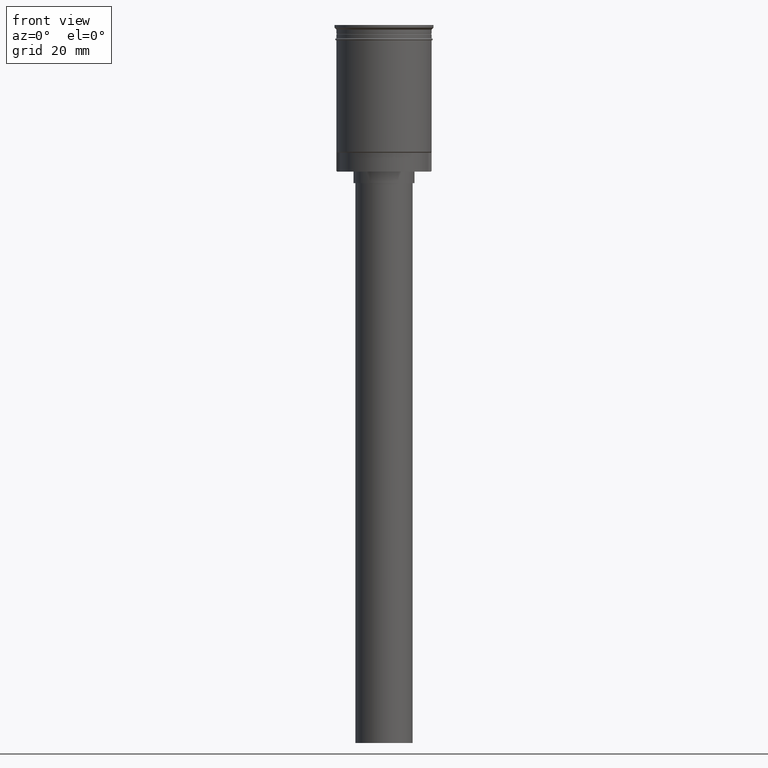
[diagram: clean part render]
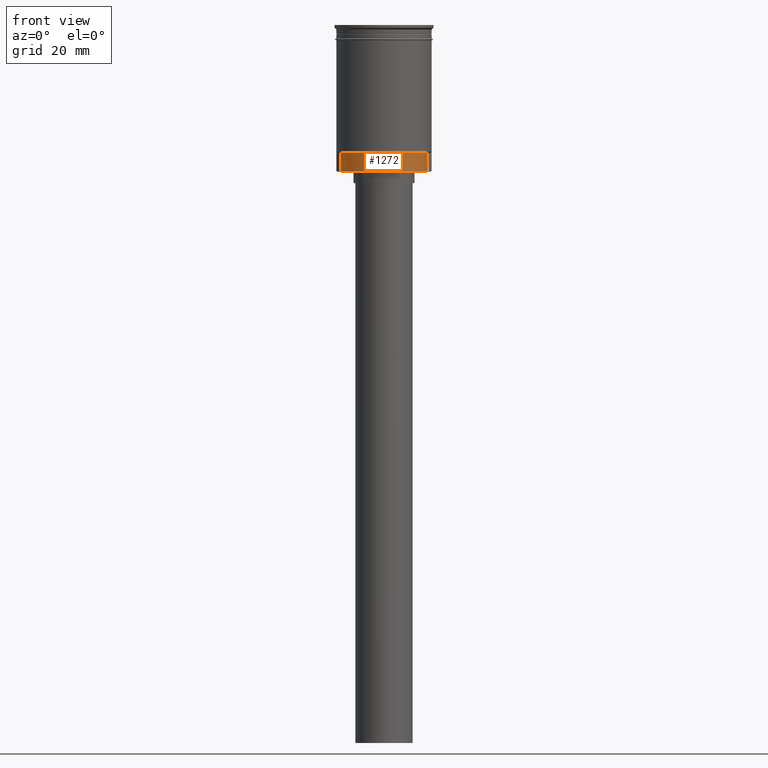
[diagram: same view with one face highlighted and labeled with its STEP entity id]
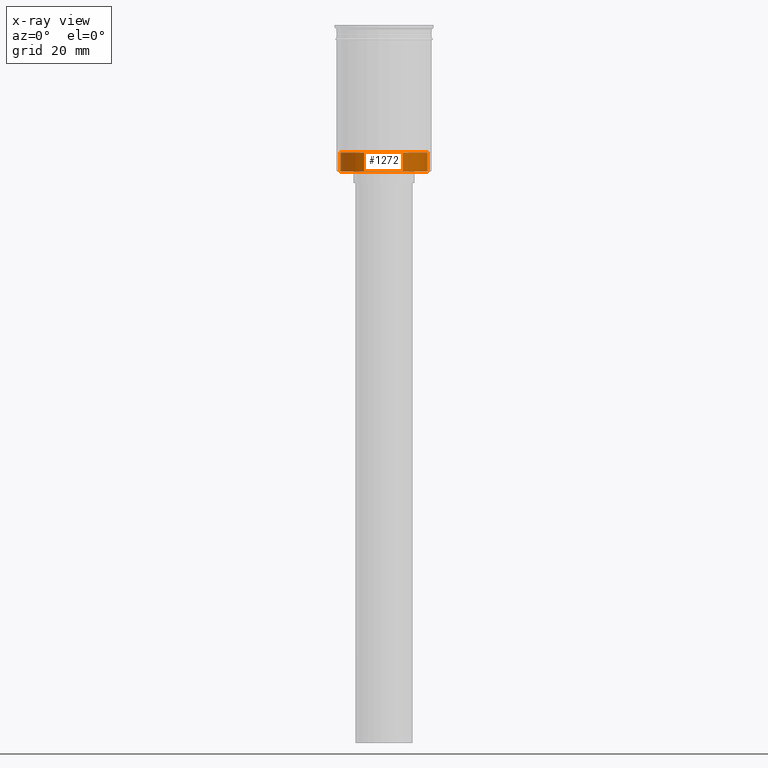
[diagram: x-ray of the same camera — body ghosted, the highlighted face saturated]
A machine part, front view. The second image highlights one B-rep face of the part: STEP entity #1272.
The next image is the same camera in x-ray: the body ghosted, the highlighted face saturated — about 0% of this face is hidden behind the body in this view.
In plain terms, the highlighted cylindrical surface (partial cylindrical patch) has radius 11.55 mm, axis along (-0, -0, 1).
Its self-contained STEP definition (entity closure, byte-faithful):
#25 = ORIENTED_EDGE ( 'NONE', *, *, #1425, .F. ) ;
#71 = CIRCLE ( 'NONE', #1573, 11.54999999999999716 ) ;
#131 = VERTEX_POINT ( 'NONE', #544 ) ;
#157 = DIRECTION ( 'NONE',  ( -0.000000000000000000, -0.000000000000000000, 1.000000000000000000 ) ) ;
#196 = ORIENTED_EDGE ( 'NONE', *, *, #1274, .T. ) ;
#201 = VECTOR ( 'NONE', #886, 1000.000000000000000 ) ;
#238 = CARTESIAN_POINT ( 'NONE',  ( 0.000000000000000000, 0.000000000000000000, -33.50000000000000000 ) ) ;
#385 = AXIS2_PLACEMENT_3D ( 'NONE', #1117, #1477, #477 ) ;
#411 = LINE ( 'NONE', #1528, #201 ) ;
#436 = VERTEX_POINT ( 'NONE', #734 ) ;
#477 = DIRECTION ( 'NONE',  ( 1.000000000000000000, 0.000000000000000000, 0.000000000000000000 ) ) ;
#491 = FACE_OUTER_BOUND ( 'NONE', #1055, .T. ) ;
#544 = CARTESIAN_POINT ( 'NONE',  ( -11.39766701030927543, -1.869675566002713563, -33.50000000000000000 ) ) ;
#597 = DIRECTION ( 'NONE',  ( 0.000000000000000000, 0.000000000000000000, -1.000000000000000000 ) ) ;
#628 = CARTESIAN_POINT ( 'NONE',  ( -11.39766701030927543, -1.869675566002713563, -38.50000000000000000 ) ) ;
#632 = ORIENTED_EDGE ( 'NONE', *, *, #1264, .F. ) ;
#734 = CARTESIAN_POINT ( 'NONE',  ( 11.39766701030927543, -1.869675566002708900, -38.50000000000000000 ) ) ;
#764 = LINE ( 'NONE', #628, #1046 ) ;
#789 = VERTEX_POINT ( 'NONE', #1471 ) ;
#870 = DIRECTION ( 'NONE',  ( 0.000000000000000000, 0.000000000000000000, -1.000000000000000000 ) ) ;
#886 = DIRECTION ( 'NONE',  ( -0.000000000000000000, -0.000000000000000000, 1.000000000000000000 ) ) ;
#975 = EDGE_CURVE ( 'NONE', #436, #789, #411, .T. ) ;
#978 = CARTESIAN_POINT ( 'NONE',  ( -11.39766701030927543, -1.869675566002713563, -38.50000000000000000 ) ) ;
#1046 = VECTOR ( 'NONE', #157, 1000.000000000000000 ) ;
#1055 = EDGE_LOOP ( 'NONE', ( #196, #25, #632, #1485 ) ) ;
#1117 = CARTESIAN_POINT ( 'NONE',  ( 0.000000000000000000, 0.000000000000000000, -38.50000000000000000 ) ) ;
#1264 = EDGE_CURVE ( 'NONE', #436, #1314, #71, .T. ) ;
#1272 = ADVANCED_FACE ( 'NONE', ( #491 ), #1581, .T. ) ;
#1274 = EDGE_CURVE ( 'NONE', #789, #131, #1281, .T. ) ;
#1281 = CIRCLE ( 'NONE', #1335, 11.54999999999999716 ) ;
#1314 = VERTEX_POINT ( 'NONE', #978 ) ;
#1335 = AXIS2_PLACEMENT_3D ( 'NONE', #238, #870, #1374 ) ;
#1374 = DIRECTION ( 'NONE',  ( -1.000000000000000000, 0.000000000000000000, 0.000000000000000000 ) ) ;
#1425 = EDGE_CURVE ( 'NONE', #1314, #131, #764, .T. ) ;
#1459 = CARTESIAN_POINT ( 'NONE',  ( 0.000000000000000000, 0.000000000000000000, -38.50000000000000000 ) ) ;
#1471 = CARTESIAN_POINT ( 'NONE',  ( 11.39766701030927543, -1.869675566002708900, -33.50000000000000000 ) ) ;
#1477 = DIRECTION ( 'NONE',  ( -0.000000000000000000, -0.000000000000000000, 1.000000000000000000 ) ) ;
#1485 = ORIENTED_EDGE ( 'NONE', *, *, #975, .T. ) ;
#1528 = CARTESIAN_POINT ( 'NONE',  ( 11.39766701030927543, -1.869675566002708900, -38.50000000000000000 ) ) ;
#1573 = AXIS2_PLACEMENT_3D ( 'NONE', #1459, #597, #1587 ) ;
#1581 = CYLINDRICAL_SURFACE ( 'NONE', #385, 11.54999999999999716 ) ;
#1587 = DIRECTION ( 'NONE',  ( -1.000000000000000000, 0.000000000000000000, 0.000000000000000000 ) ) ;